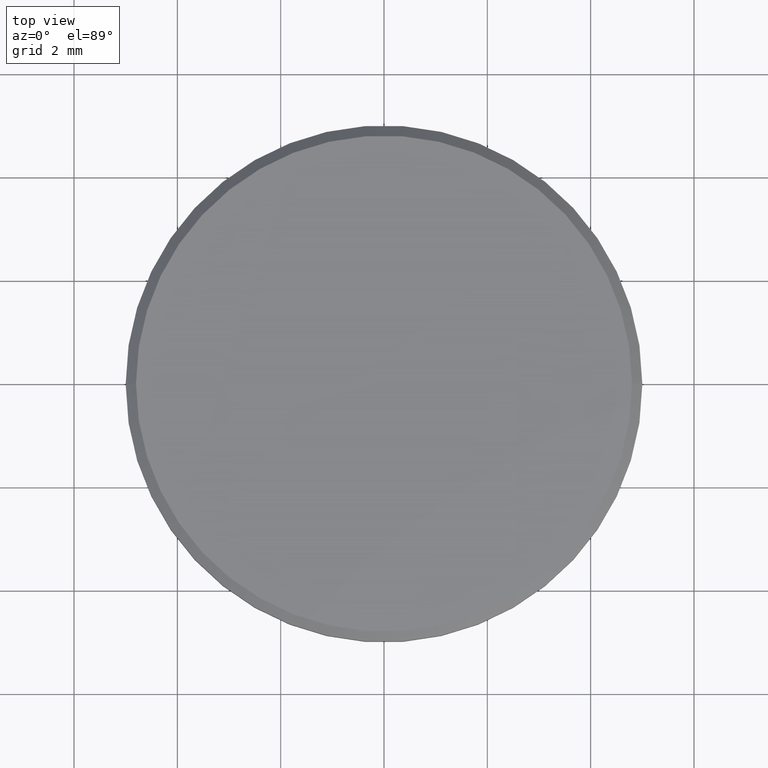
[diagram: clean part render]
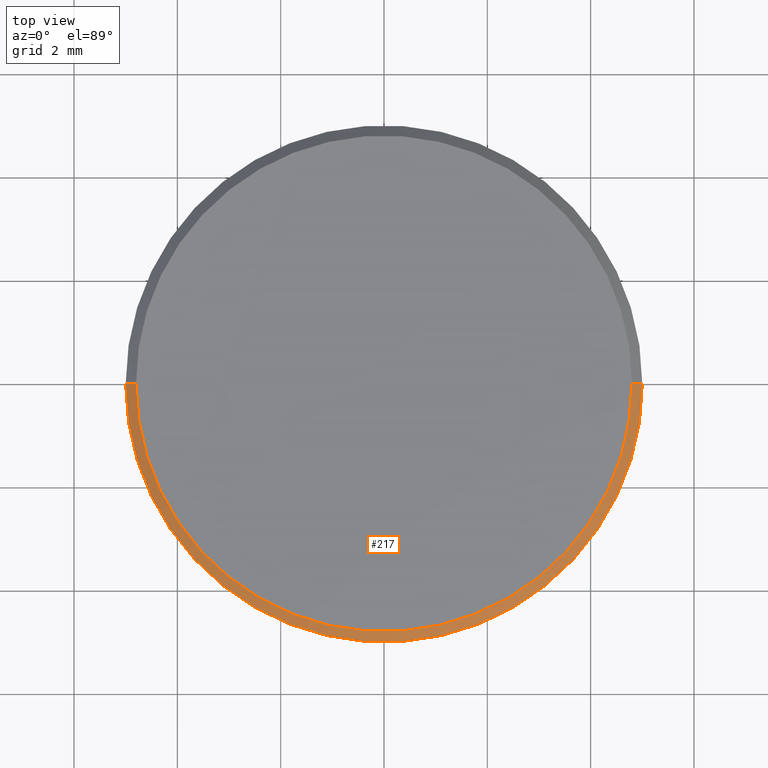
[diagram: same view with one face highlighted and labeled with its STEP entity id]
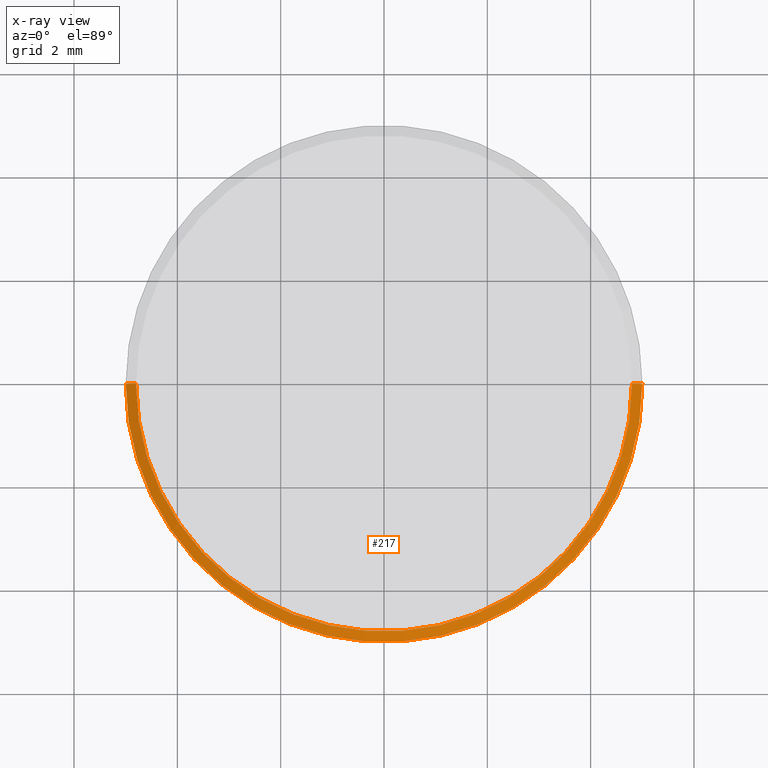
[diagram: x-ray of the same camera — body ghosted, the highlighted face saturated]
A machine part, top view. The second image highlights one B-rep face of the part: STEP entity #217.
The next image is the same camera in x-ray: the body ghosted, the highlighted face saturated — about 0% of this face is hidden behind the body in this view.
In plain terms, the highlighted conical surface has half-angle 45 deg.
Its self-contained STEP definition (entity closure, byte-faithful):
#4 = AXIS2_PLACEMENT_3D ( 'NONE', #93, #124, #127 ) ;
#17 = CONICAL_SURFACE ( 'NONE', #154, 4.800000000000002487, 0.7853981633974461696 ) ;
#20 = EDGE_CURVE ( 'NONE', #216, #51, #139, .T. ) ;
#21 = CARTESIAN_POINT ( 'NONE',  ( 0.000000000000000000, 0.000000000000000000, 1.000000000000000000 ) ) ;
#31 = DIRECTION ( 'NONE',  ( 0.000000000000000000, 0.000000000000000000, 1.000000000000000000 ) ) ;
#39 = CARTESIAN_POINT ( 'NONE',  ( 5.000000000000000000, 6.123233995736766282E-16, 0.8000000000000012657 ) ) ;
#47 = EDGE_CURVE ( 'NONE', #129, #191, #117, .T. ) ;
#48 = DIRECTION ( 'NONE',  ( 0.7071067811865460184, 8.659560562354913137E-17, -0.7071067811865489050 ) ) ;
#51 = VERTEX_POINT ( 'NONE', #165 ) ;
#55 = LINE ( 'NONE', #169, #96 ) ;
#69 = LINE ( 'NONE', #218, #131 ) ;
#75 = DIRECTION ( 'NONE',  ( -0.7071067811865460184, 0.000000000000000000, -0.7071067811865489050 ) ) ;
#77 = CARTESIAN_POINT ( 'NONE',  ( -4.800000000000002487, 0.000000000000000000, 1.000000000000000000 ) ) ;
#79 = DIRECTION ( 'NONE',  ( -1.000000000000000000, 0.000000000000000000, 0.000000000000000000 ) ) ;
#87 = EDGE_CURVE ( 'NONE', #51, #129, #69, .T. ) ;
#91 = DIRECTION ( 'NONE',  ( 1.000000000000000000, 0.000000000000000000, 0.000000000000000000 ) ) ;
#92 = CARTESIAN_POINT ( 'NONE',  ( 0.000000000000000000, 0.000000000000000000, 1.000000000000000000 ) ) ;
#93 = CARTESIAN_POINT ( 'NONE',  ( 0.000000000000000000, 0.000000000000000000, 0.8000000000000012657 ) ) ;
#96 = VECTOR ( 'NONE', #75, 1000.000000000000114 ) ;
#106 = AXIS2_PLACEMENT_3D ( 'NONE', #92, #31, #91 ) ;
#110 = EDGE_LOOP ( 'NONE', ( #200, #164, #186, #221 ) ) ;
#117 = CIRCLE ( 'NONE', #4, 5.000000000000000000 ) ;
#124 = DIRECTION ( 'NONE',  ( 0.000000000000000000, 0.000000000000000000, -1.000000000000000000 ) ) ;
#127 = DIRECTION ( 'NONE',  ( 1.000000000000000000, 0.000000000000000000, 0.000000000000000000 ) ) ;
#129 = VERTEX_POINT ( 'NONE', #39 ) ;
#130 = DIRECTION ( 'NONE',  ( 0.000000000000000000, 0.000000000000000000, -1.000000000000000000 ) ) ;
#131 = VECTOR ( 'NONE', #48, 1000.000000000000114 ) ;
#139 = CIRCLE ( 'NONE', #106, 4.800000000000002487 ) ;
#154 = AXIS2_PLACEMENT_3D ( 'NONE', #21, #130, #79 ) ;
#164 = ORIENTED_EDGE ( 'NONE', *, *, #20, .F. ) ;
#165 = CARTESIAN_POINT ( 'NONE',  ( 4.800000000000002487, 6.000769315822031726E-16, 1.000000000000000000 ) ) ;
#169 = CARTESIAN_POINT ( 'NONE',  ( -4.800000000000002487, 0.000000000000000000, 1.000000000000000000 ) ) ;
#186 = ORIENTED_EDGE ( 'NONE', *, *, #228, .T. ) ;
#190 = CARTESIAN_POINT ( 'NONE',  ( -5.000000000000000000, 0.000000000000000000, 0.8000000000000012657 ) ) ;
#191 = VERTEX_POINT ( 'NONE', #190 ) ;
#200 = ORIENTED_EDGE ( 'NONE', *, *, #87, .F. ) ;
#206 = FACE_OUTER_BOUND ( 'NONE', #110, .T. ) ;
#216 = VERTEX_POINT ( 'NONE', #77 ) ;
#217 = ADVANCED_FACE ( 'NONE', ( #206 ), #17, .T. ) ;
#218 = CARTESIAN_POINT ( 'NONE',  ( 4.800000000000002487, 5.878304635907297169E-16, 1.000000000000000000 ) ) ;
#221 = ORIENTED_EDGE ( 'NONE', *, *, #47, .F. ) ;
#228 = EDGE_CURVE ( 'NONE', #216, #191, #55, .T. ) ;